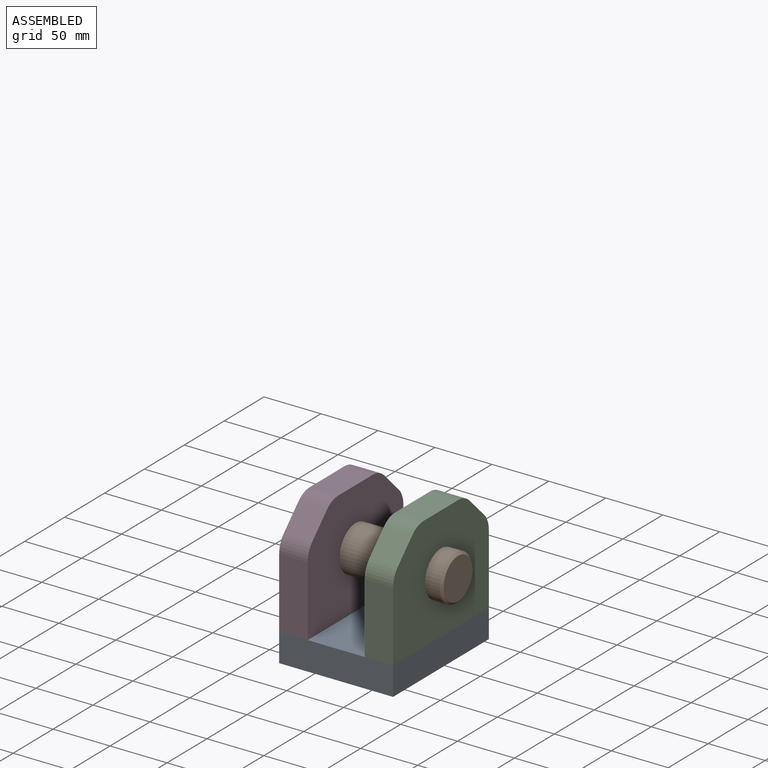
[diagram: assembled view]
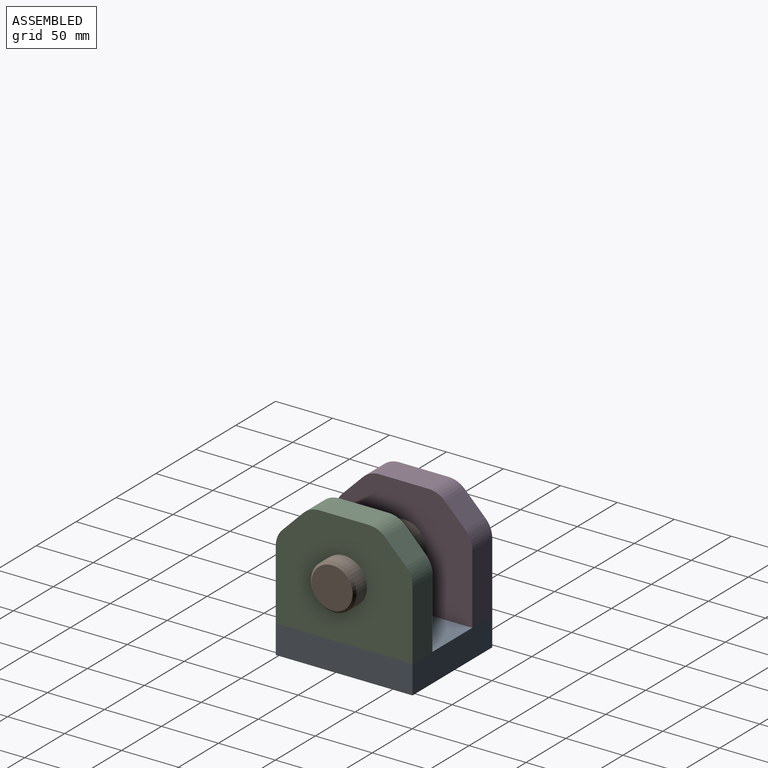
[diagram: assembled view, second angle]
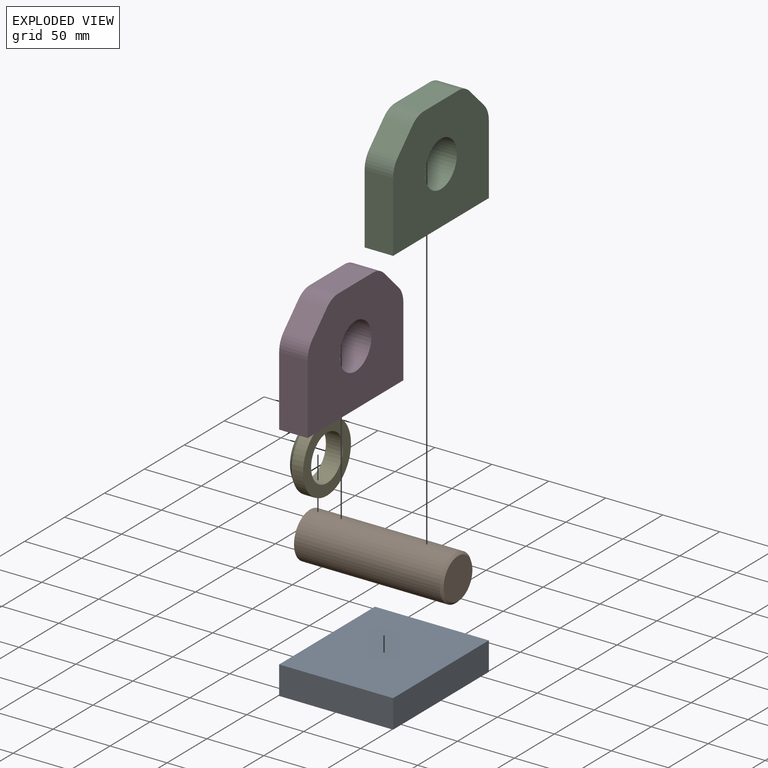
[diagram: exploded view]
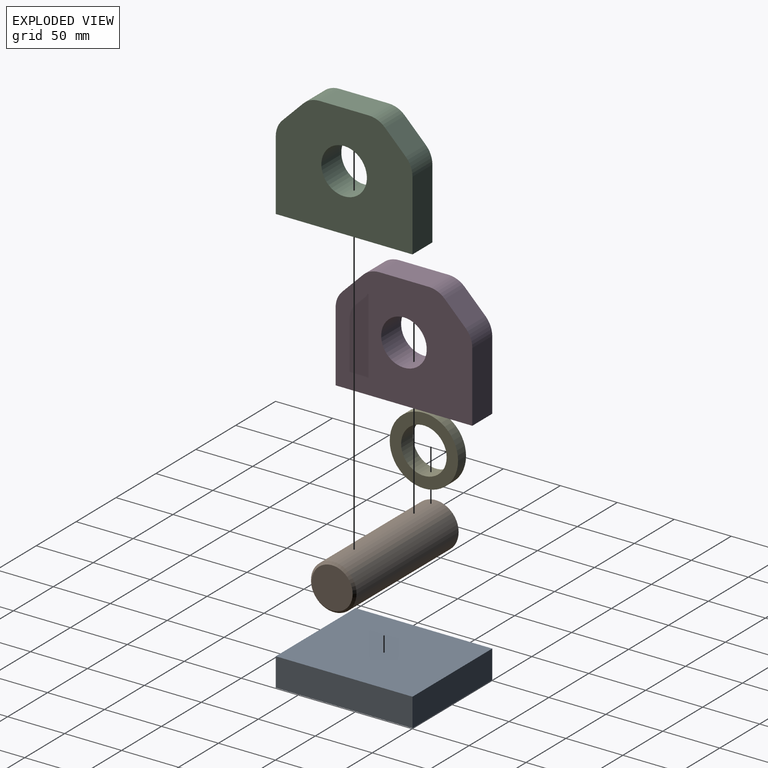
[diagram: exploded view, second angle]
ASSEMBLY  parts=5 mates=3
PART A: 6 faces, bbox 100x120x25 mm
  f0: plane 120x100mm, normal (0,0,-1), area 12000mm2, adj f1,f3,f4,f5
  f1: plane 120x25mm, normal (1,0,0), area 3000mm2, adj f0,f2,f4,f5
  f2: plane 120x100mm, normal (0,0,1), area 12000mm2, adj f1,f3,f4,f5
  f3: plane 120x25mm, normal (-1,0,0), area 3000mm2, adj f0,f2,f4,f5
  f4: plane 100x25mm, normal (0,-1,0), area 2500mm2, adj f0,f1,f2,f3
  f5: plane 100x25mm, normal (0,1,0), area 2500mm2, adj f0,f1,f2,f3
PART B: 4 faces, bbox 40x130x40 mm
  f0: cylinder r=20mm len=128mm, axis (0,-1,0), area 16085mm2, adj f2,f3
  f1: plane 36x36mm, normal (0,1,0), area 1017.9mm2, adj f3
  f2: plane 40x40mm, normal (0,-1,0), area 1256.6mm2, adj f0
  f3: cone r=20mm half-angle=45deg, axis (0,-1,0), area 337.7mm2, adj f0,f1
PART C: 13 faces, bbox 120x25x100 mm
  f0: plane 43.43x25mm, normal (0,0,-1), area 1085.8mm2, adj f1,f9,f11,f12
  f1: cylinder r=20mm len=25mm, axis (0,1,0), area 392.7mm2, adj f0,f2,f11,f12
  f2: plane 25x18.28mm, normal (0.71,0,-0.71), area 646.4mm2, adj f1,f3,f11,f12
  f3: cylinder r=20mm len=25mm, axis (0,1,0), area 392.7mm2, adj f2,f4,f11,f12
  f4: plane 61.72x25mm, normal (1,0,0), area 1542.9mm2, adj f3,f5,f11,f12
  f5: plane 120x25mm, normal (0,0,1), area 3000mm2, adj f4,f6,f11,f12
  f6: plane 61.72x25mm, normal (-1,0,0), area 1542.9mm2, adj f5,f7,f11,f12
  f7: cylinder r=20mm len=25mm, axis (0,1,0), area 392.7mm2, adj f6,f8,f11,f12
  f8: plane 25x18.28mm, normal (-0.71,0,-0.71), area 646.4mm2, adj f7,f9,f11,f12
  f9: cylinder r=20mm len=25mm, axis (0,1,0), area 392.7mm2, adj f0,f8,f11,f12
  f10: cylinder r=20mm len=40mm, axis (0,1,0), area 3141.6mm2, adj f11,f12
  f11: plane 120x100mm, normal (0,-1,0), area 9808.9mm2, adj f0,f1,f2,f3,f4,f5,f6,f7
  f12: plane 120x100mm, normal (0,1,0), area 9808.9mm2, adj f0,f1,f2,f3,f4,f5,f6,f7
PART D: same geometry as C
PART E: 5 faces, bbox 60x15x60 mm
  f0: cylinder r=20mm len=40mm, axis (0,-1,0), area 1885mm2, adj f2,f3
  f1: cylinder r=30mm len=60mm, axis (0,-1,0), area 1885mm2, adj f2,f4
  f2: plane 60x60mm, normal (0,1,0), area 1570.8mm2, adj f0,f1
  f3: plane 50x50mm, normal (0,-1,0), area 706.9mm2, adj f0,f4
  f4: cone r=25mm half-angle=45deg, axis (0,1,0), area 1221.8mm2, adj f1,f3
PLACE A t=(4.84,-106.27,-124.14)mm
PLACE B rot(axis=(0.58,0.58,-0.58),120deg) t=(-110.16,-106.27,-49.14)mm
PLACE C rot(axis=(0.71,0.71,0),180deg) t=(4.84,-106.27,0.86)mm
PLACE D rot(axis=(-0.71,0.71,0),180deg) t=(-95.16,-106.27,0.86)mm
PLACE E rot(axis=(0.58,0.58,-0.58),120deg) t=(-110.16,-106.27,-49.14)mm
MATE revolute E.f0 <-> D.f10  axis (1,0,0) through (-95.16,-106.27,-49.14)mm
MATE parallel D.f5 <-> A.f2  axis (0,0,-1) through (-95.16,-106.27,-99.14)mm
MATE parallel C.f5 <-> A.f2  axis (0,0,-1) through (4.84,-106.27,-99.14)mm
